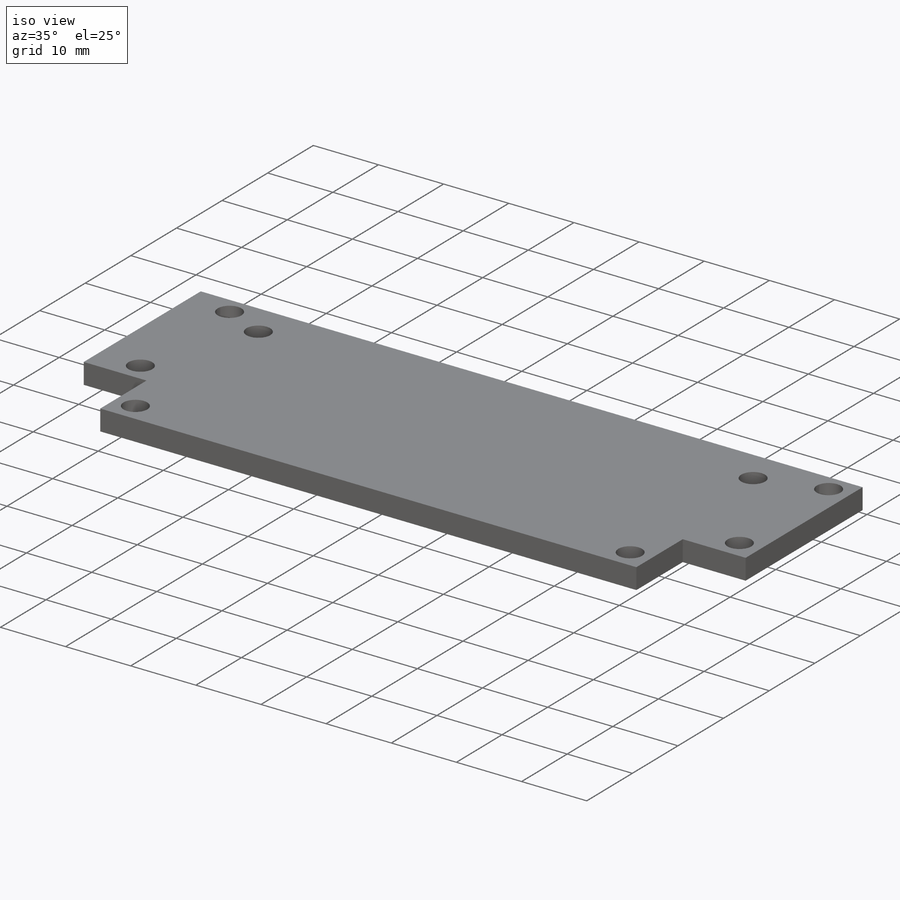
[diagram: iso view]
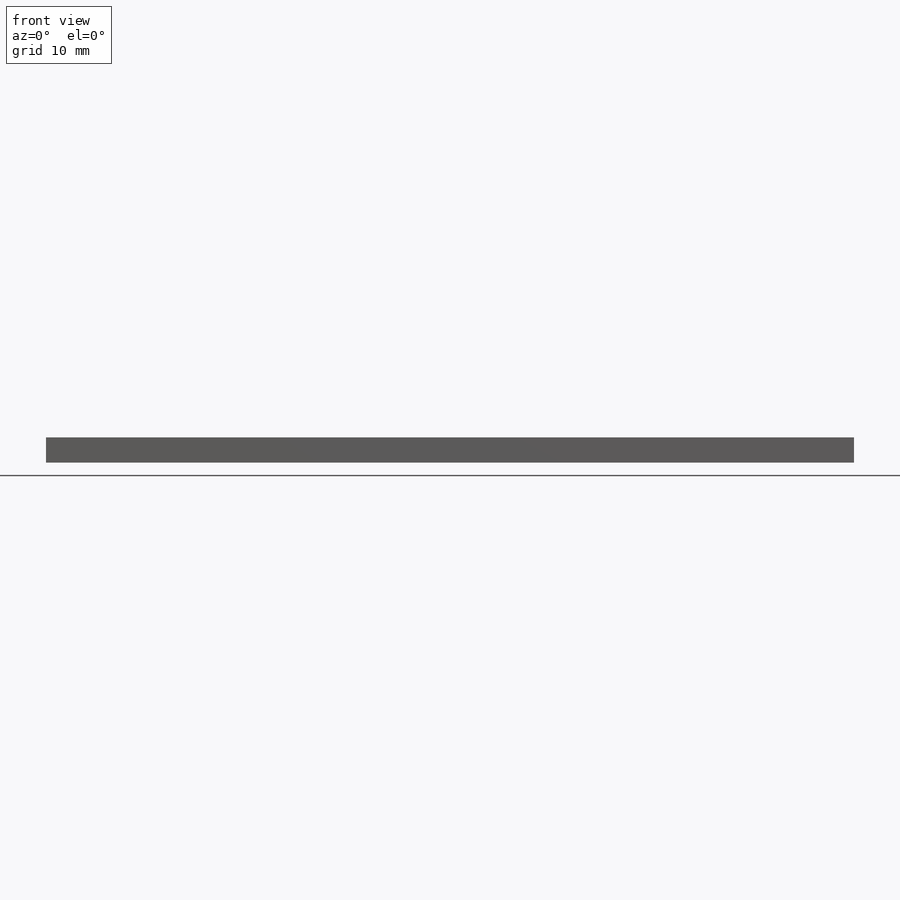
[diagram: front view]
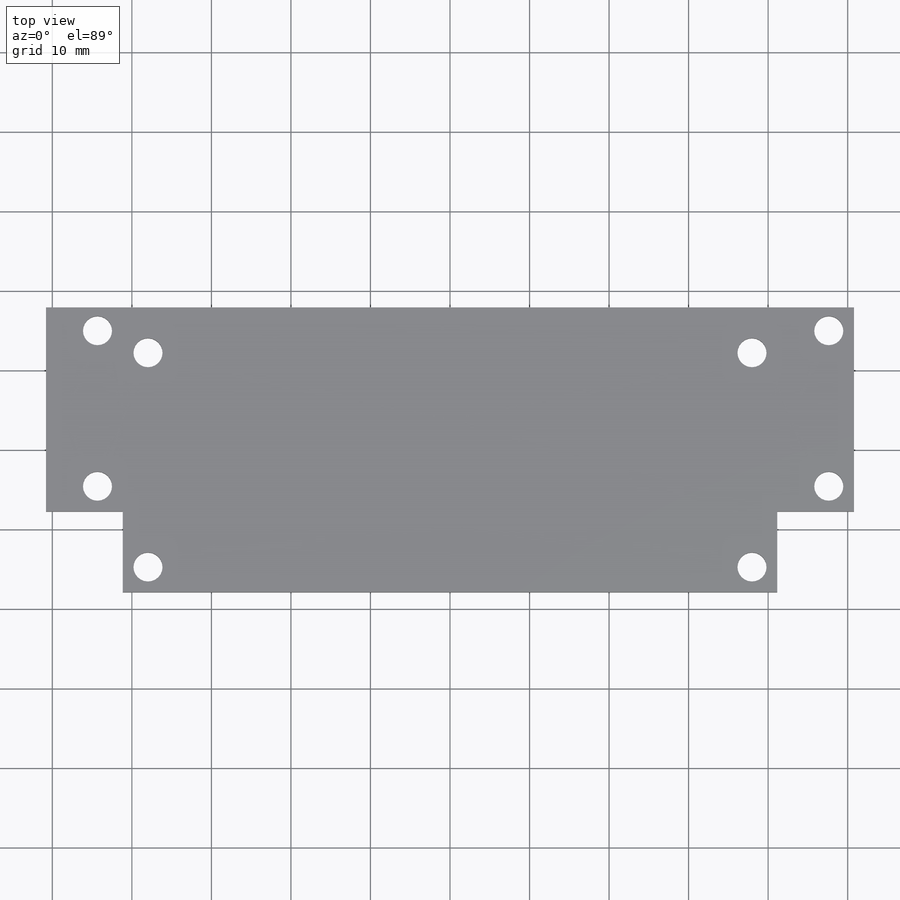
[diagram: top view]
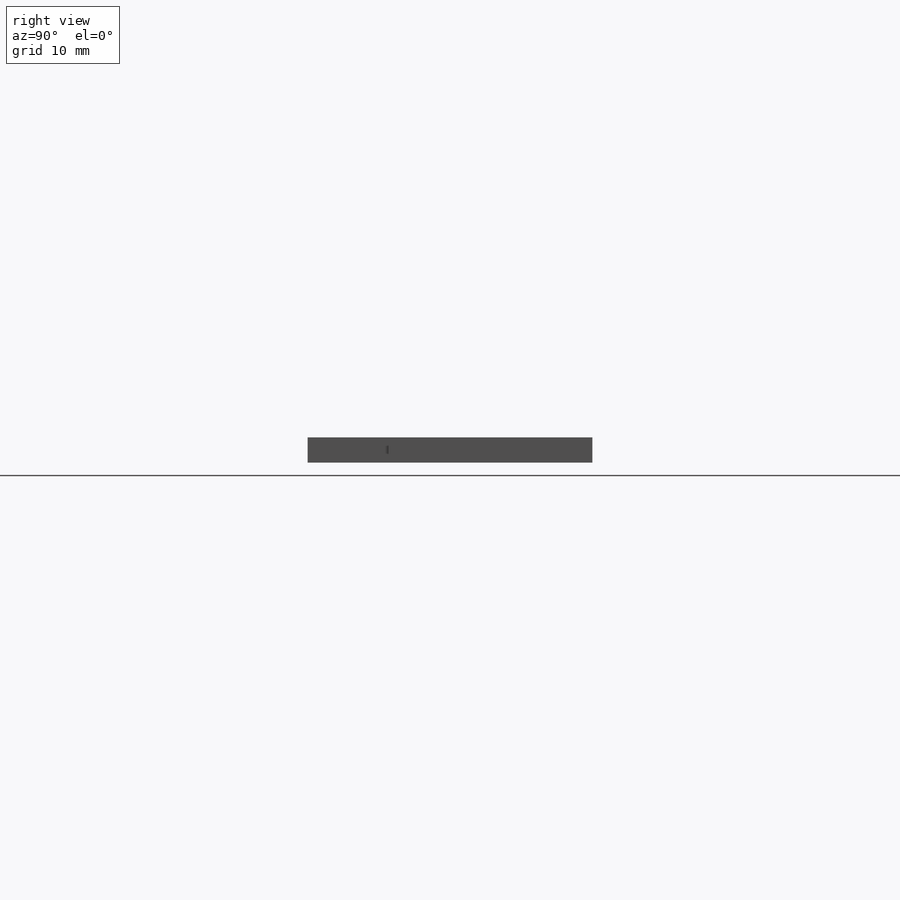
[diagram: right view]
SOLIDWORKS PART (.sldprt)
format: sldprt  version: not decoded by parser v0  size: 222,208 bytes
history: native  units: mm
features: sketch x4, cut_extrude x3, material x1, extrude x1 (+12 scaffold rows collapsed)
feature tree (21):
  scaffold x12  (default folders/planes/origin — collapsed)
  material  "Material <not specified>"
  sketch  "Sketch2"  dims[c1.D1=~55.94765mm c1.D2=~138.484283mm c2.D1=101.6mm c2.D2=35.814mm]
  extrude  "Boss-Extrude1"  Depth=3.175mm
  sketch  "Sketch3"  dims[c1.D3=3.6576mm c1.D5=3.6576mm c1.D9=3.6576mm c1.D10=3.6576mm c1.D1=3.175mm c1.D2=2.921mm c1.D4=19.558mm c1.D6=3.302mm c1.D7=3.175mm c1.D8=2.921mm c2.D10=~58.720423mm]
  cut_extrude  "Cut-Extrude1"  [1 undecoded]
  sketch  "Sketch4"  dims[c1.D2=3.6576mm c1.D4=3.6576mm c1.D3=3.6576mm c1.D5=3.6576mm c1.D6=3.6576mm c2.D5=3.6576mm c2.D1=6.35mm c2.D3=26.9494mm c3.D1=6.35mm c3.D2=3.175mm c3.D4=26.9494mm]
  cut_extrude  "Cut-Extrude2"  [1 undecoded]
  sketch  "Sketch5"  dims[c1.D1=3.175mm c1.D2=9.652mm c1.D3=~8.605938mm c2.D2=3.175mm c2.D3=10.16mm c2.D4=~9.594131mm c3.D3=~15.516507mm]
  cut_extrude  "Cut-Extrude3"  [1 undecoded]
decode coverage: 5 of 8 modeling features carry decoded parameters
note: ~ marks probable driven/reference dimensions
note: 3 parameter values undecoded
summary: no parameter record found for 3 features
note: suppression state not decoded; provenance and decode notes live in map.json
